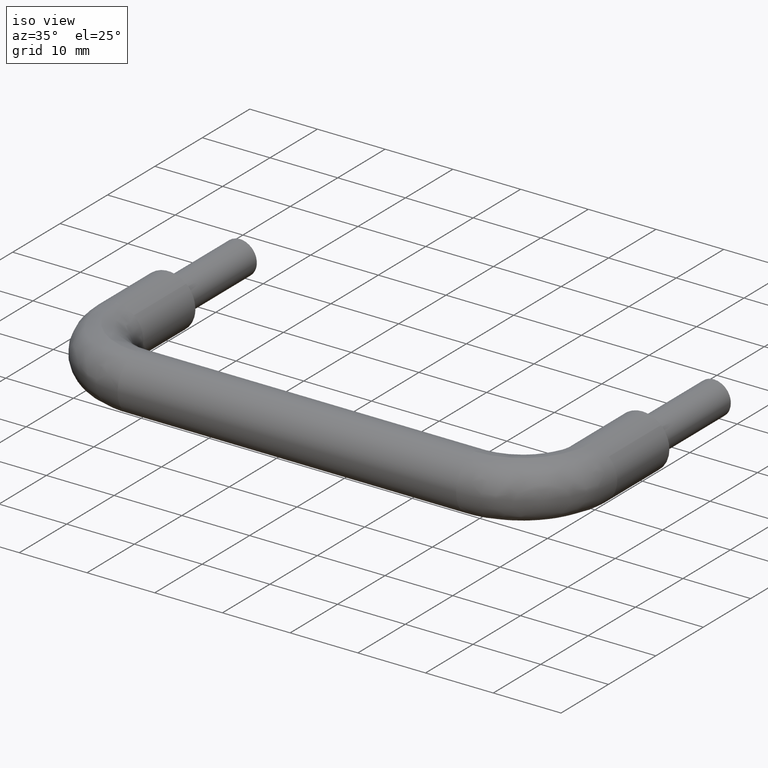
[diagram: clean part render]
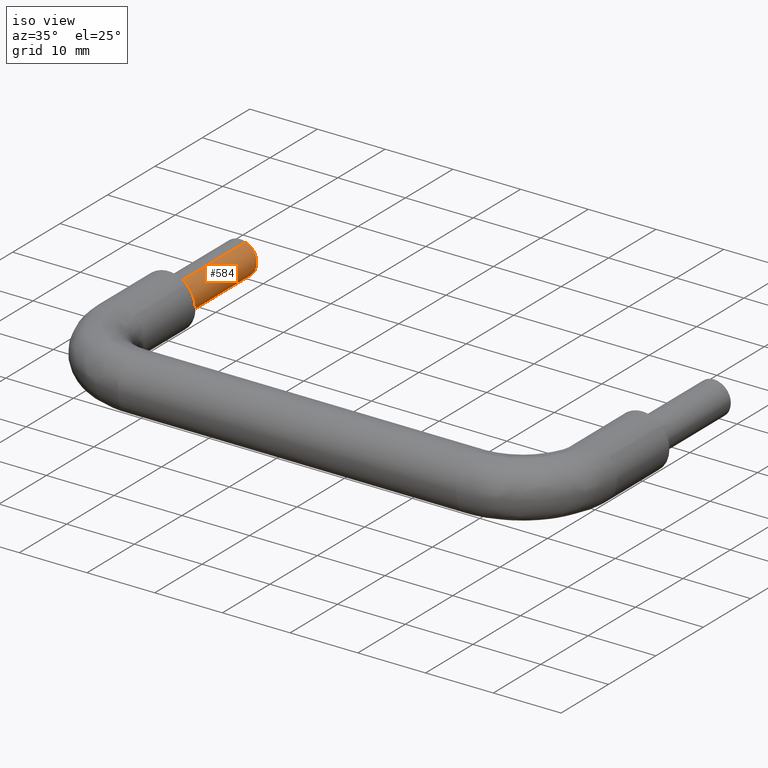
[diagram: same view with one face highlighted and labeled with its STEP entity id]
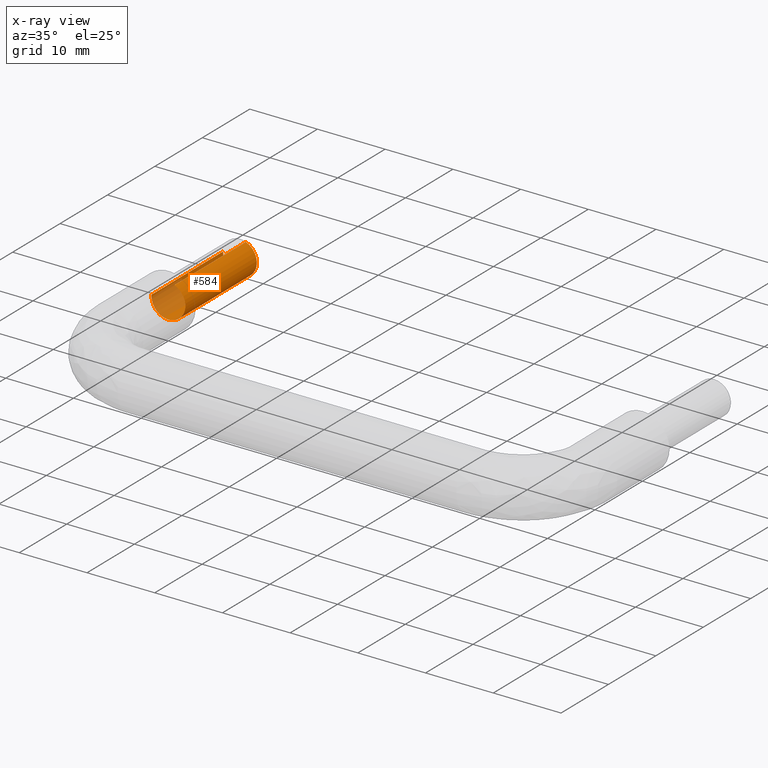
[diagram: x-ray of the same camera — body ghosted, the highlighted face saturated]
A machine part, iso view. The second image highlights one B-rep face of the part: STEP entity #584.
The next image is the same camera in x-ray: the body ghosted, the highlighted face saturated — about 20% of this face is hidden behind the body in this view.
In plain terms, the highlighted face is a freeform B-spline surface patch.
Its self-contained STEP definition (entity closure, byte-faithful):
#402=CARTESIAN_POINT('',(0.879042628116824,15.100000000000000,2.340359813778084));
#403=VERTEX_POINT('',#402);
#419=CARTESIAN_POINT('',(-2.495336996055530,15.099999999996781,0.152621348849576));
#420=VERTEX_POINT('',#419);
#434=CARTESIAN_POINT('',(-2.495337244689253,9.992007E-016,0.152617283588900));
#435=VERTEX_POINT('',#434);
#436=CARTESIAN_POINT('',(-2.495336996055530,15.099999999996781,0.152621348849576));
#437=CARTESIAN_POINT('',(-2.495337244689253,9.992007E-016,0.152617283588900));
#438=QUASI_UNIFORM_CURVE('',1,(#436,#437),.UNSPECIFIED.,.F.,.U.);
#439=EDGE_CURVE('',#420,#435,#438,.T.);
#456=CARTESIAN_POINT('',(0.879044935986353,1.531301E-016,2.340358946938856));
#457=VERTEX_POINT('',#456);
#471=CARTESIAN_POINT('',(0.879042628116824,15.100000000000000,2.340359813778084));
#472=CARTESIAN_POINT('',(0.879044935986353,1.531301E-016,2.340358946938856));
#473=QUASI_UNIFORM_CURVE('',1,(#471,#472),.UNSPECIFIED.,.F.,.U.);
#474=EDGE_CURVE('',#403,#457,#473,.T.);
#479=CARTESIAN_POINT('',(-2.495336996054666,15.477499999999999,0.152621348837143));
#480=CARTESIAN_POINT('',(-2.647958344891809,15.477499999999999,-2.342715647217524));
#481=CARTESIAN_POINT('',(-0.152621348837142,15.477499999999999,-2.495336996054667));
#482=CARTESIAN_POINT('',(2.342715647217524,15.477499999999999,-2.647958344891809));
#483=CARTESIAN_POINT('',(2.495336996054667,15.477499999999999,-0.152621348837143));
#484=CARTESIAN_POINT('',(2.608093057173355,15.477500000000010,1.690923954507663));
#485=CARTESIAN_POINT('',(0.879044935978931,15.477500000000006,2.340358946941643));
#486=CARTESIAN_POINT('',(-2.495336996054666,-0.386937500000000,0.152621348837143));
#487=CARTESIAN_POINT('',(-2.647958344891809,-0.386937500000000,-2.342715647217524));
#488=CARTESIAN_POINT('',(-0.152621348837142,-0.386937500000000,-2.495336996054667));
#489=CARTESIAN_POINT('',(2.342715647217524,-0.386937500000000,-2.647958344891809));
#490=CARTESIAN_POINT('',(2.495336996054667,-0.386937500000000,-0.152621348837143));
#491=CARTESIAN_POINT('',(2.608093057173355,-0.386937500000000,1.690923954507663));
#492=CARTESIAN_POINT('',(0.879044935978931,-0.386937500000000,2.340358946941643));
#500=(BOUNDED_SURFACE()B_SPLINE_SURFACE(2,1,((#479,#486),(#480,#487),(#481,#488),(#482,#489),(#483,#490),(#484,#491),(#485,#492)),.UNSPECIFIED.,.F.,.F.,.U.)B_SPLINE_SURFACE_WITH_KNOTS((3,2,2,3),(2,2),(0.0,4.142135623730949,8.284271247461899,11.597979746446660),(0.0,15.864437500000010),.UNSPECIFIED.)GEOMETRIC_REPRESENTATION_ITEM()RATIONAL_B_SPLINE_SURFACE(((1.0,1.0),(0.707106781186548,0.707106781186548),(1.0,1.0),(0.707106781186548,0.707106781186548),(1.0,1.0),(0.765685424949238,0.765685424949238),(0.906274169979695,0.906274169979695)))REPRESENTATION_ITEM('')SURFACE());
#501=CARTESIAN_POINT('',(2.482523815911766,15.099999999965240,-0.295085586914663));
#502=VERTEX_POINT('',#501);
#503=CARTESIAN_POINT('',(2.482523815911766,15.099999999965235,-0.295085586914663));
#504=CARTESIAN_POINT('',(2.500000000000000,15.100000000000001,-0.148060299401277));
#505=CARTESIAN_POINT('',(2.500000000000000,15.100000000000000,0.0));
#506=CARTESIAN_POINT('',(2.500000000000000,15.100000000000005,1.731525813188124));
#507=CARTESIAN_POINT('',(0.879042628116824,15.100000000000007,2.340359813778085));
#515=(BOUNDED_CURVE()B_SPLINE_CURVE(2,(#503,#504,#505,#506,#507),.UNSPECIFIED.,.F.,.U.)B_SPLINE_CURVE_WITH_KNOTS((3,2,3),(0.229562473479065,0.250000000000000,0.440284326655568),.UNSPECIFIED.)CURVE()GEOMETRIC_REPRESENTATION_ITEM()RATIONAL_B_SPLINE_CURVE((0.956026754116188,0.976055948290792,1.0,0.777068044304401,0.893499745245170))REPRESENTATION_ITEM(''));
#516=EDGE_CURVE('',#502,#403,#515,.T.);
#517=ORIENTED_EDGE('',*,*,#516,.T.);
#518=ORIENTED_EDGE('',*,*,#474,.T.);
#519=CARTESIAN_POINT('',(6.123032E-016,0.0,-2.500000000000000));
#520=VERTEX_POINT('',#519);
#521=CARTESIAN_POINT('',(6.123032E-016,0.0,-2.500000000000000));
#522=CARTESIAN_POINT('',(2.500000000000000,0.0,-2.500000000000000));
#523=CARTESIAN_POINT('',(2.500000000000000,0.0,0.0));
#524=CARTESIAN_POINT('',(2.500000000000001,0.0,1.731523989224318));
#525=CARTESIAN_POINT('',(0.879044935986353,1.531301E-016,2.340358946938856));
#533=(BOUNDED_CURVE()B_SPLINE_CURVE(2,(#521,#522,#523,#524,#525),.UNSPECIFIED.,.F.,.U.)B_SPLINE_CURVE_WITH_KNOTS((3,2,3),(0.0,0.250000000000000,0.440284170897908),.UNSPECIFIED.)CURVE()GEOMETRIC_REPRESENTATION_ITEM()RATIONAL_B_SPLINE_CURVE((1.0,0.707106781186548,1.0,0.777068226785851,0.893499554634540))REPRESENTATION_ITEM(''));
#534=EDGE_CURVE('',#520,#457,#533,.T.);
#535=ORIENTED_EDGE('',*,*,#534,.F.);
#536=CARTESIAN_POINT('',(-2.495337244689253,9.992007E-016,0.152617283588900));
#537=CARTESIAN_POINT('',(-2.500000000000000,0.0,0.076379869923324));
#538=CARTESIAN_POINT('',(-2.500000000000000,0.0,0.0));
#539=CARTESIAN_POINT('',(-2.500000000000000,0.0,-2.500000000000000));
#540=CARTESIAN_POINT('',(6.123032E-016,0.0,-2.500000000000000));
#548=(BOUNDED_CURVE()B_SPLINE_CURVE(2,(#536,#537,#538,#539,#540),.UNSPECIFIED.,.F.,.U.)B_SPLINE_CURVE_WITH_KNOTS((3,2,3),(0.739333243344554,0.750000000000000,1.0),.UNSPECIFIED.)CURVE()GEOMETRIC_REPRESENTATION_ITEM()RATIONAL_B_SPLINE_CURVE((0.976072644130293,0.987503117235546,1.0,0.707106781186548,1.0))REPRESENTATION_ITEM(''));
#549=EDGE_CURVE('',#435,#520,#548,.T.);
#550=ORIENTED_EDGE('',*,*,#549,.F.);
#551=ORIENTED_EDGE('',*,*,#439,.F.);
#552=CARTESIAN_POINT('',(6.123032E-016,15.100000000000000,-2.500000000000000));
#553=VERTEX_POINT('',#552);
#554=CARTESIAN_POINT('',(-2.495336996055531,15.099999999996786,0.152621348849576));
#555=CARTESIAN_POINT('',(-2.500000000000000,15.099999999999998,0.076381908271211));
#556=CARTESIAN_POINT('',(-2.500000000000000,15.100000000000000,0.0));
#557=CARTESIAN_POINT('',(-2.500000000000000,15.100000000000001,-2.500000000000000));
#558=CARTESIAN_POINT('',(6.123032E-016,15.100000000000000,-2.500000000000000));
#566=(BOUNDED_CURVE()B_SPLINE_CURVE(2,(#554,#555,#556,#557,#558),.UNSPECIFIED.,.F.,.U.)B_SPLINE_CURVE_WITH_KNOTS((3,2,3),(0.739332962238557,0.750000000000000,1.0),.UNSPECIFIED.)CURVE()GEOMETRIC_REPRESENTATION_ITEM()RATIONAL_B_SPLINE_CURVE((0.976072041665890,0.987502787899385,1.0,0.707106781186548,1.0))REPRESENTATION_ITEM(''));
#567=EDGE_CURVE('',#420,#553,#566,.T.);
#568=ORIENTED_EDGE('',*,*,#567,.T.);
#569=CARTESIAN_POINT('',(6.123032E-016,15.100000000000000,-2.500000000000000));
#570=CARTESIAN_POINT('',(2.220436314394439,15.099999999999996,-2.499999999999999));
#571=CARTESIAN_POINT('',(2.482523815911766,15.099999999965236,-0.295085586914663));
#579=(BOUNDED_CURVE()B_SPLINE_CURVE(2,(#569,#570,#571),.UNSPECIFIED.,.F.,.U.)B_SPLINE_CURVE_WITH_KNOTS((3,3),(0.0,0.229562473479065),.UNSPECIFIED.)CURVE()GEOMETRIC_REPRESENTATION_ITEM()RATIONAL_B_SPLINE_CURVE((1.0,0.731050832895756,0.956026754116188))REPRESENTATION_ITEM(''));
#580=EDGE_CURVE('',#553,#502,#579,.T.);
#581=ORIENTED_EDGE('',*,*,#580,.T.);
#582=EDGE_LOOP('',(#517,#518,#535,#550,#551,#568,#581));
#583=FACE_OUTER_BOUND('',#582,.T.);
#584=ADVANCED_FACE('',(#583),#500,.T.);